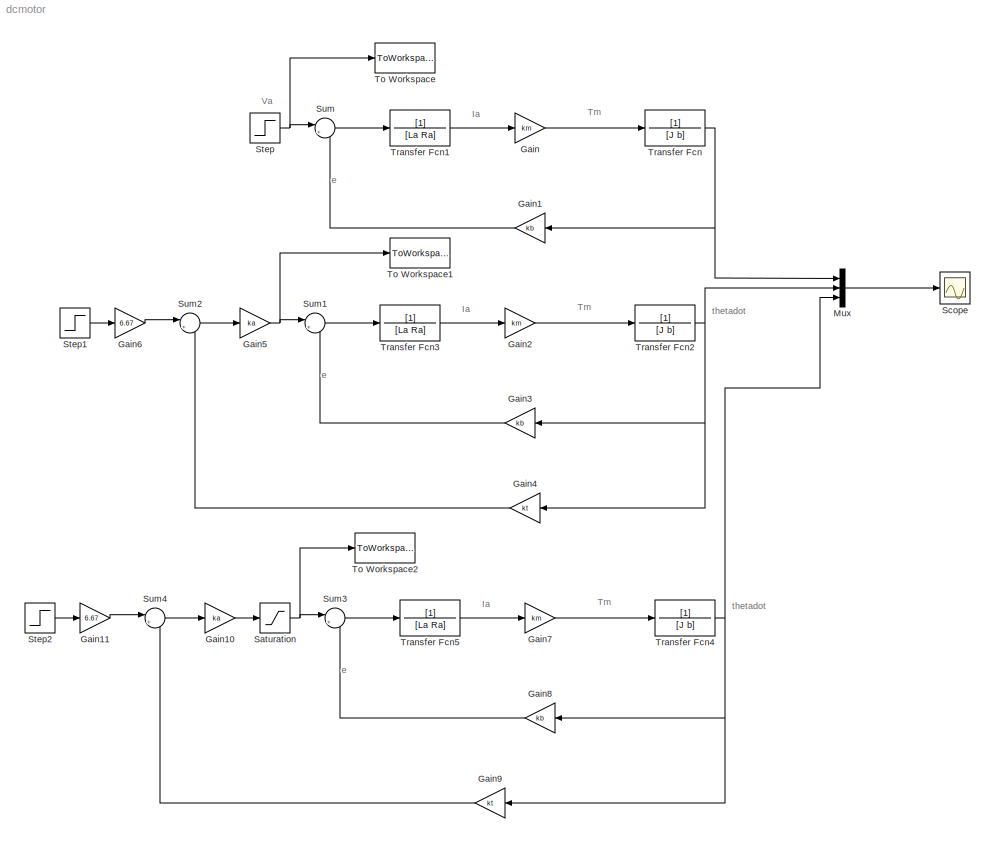
MODEL dcmotor
KIND model
BLOCK [Gain] Gain
  Gain = km
  OutDataTypeMode = Inherit via internal rule
  ParameterDataTypeMode = Inherit via internal rule
  SaturateOnIntegerOverflow = off
BLOCK [Gain] Gain1
  Gain = kb
  OutDataTypeMode = Inherit via internal rule
  ParameterDataTypeMode = Inherit via internal rule
  SaturateOnIntegerOverflow = off
BLOCK [Gain] Gain10
  Gain = ka
  OutDataTypeMode = Inherit via internal rule
  ParameterDataTypeMode = Inherit via internal rule
  SaturateOnIntegerOverflow = off
BLOCK [Gain] Gain11
  Gain = 6.67
  OutDataTypeMode = Inherit via internal rule
  ParameterDataTypeMode = Inherit via internal rule
  SaturateOnIntegerOverflow = off
BLOCK [Gain] Gain2
  Gain = km
  OutDataTypeMode = Inherit via internal rule
  ParameterDataTypeMode = Inherit via internal rule
  SaturateOnIntegerOverflow = off
BLOCK [Gain] Gain3
  Gain = kb
  OutDataTypeMode = Inherit via internal rule
  ParameterDataTypeMode = Inherit via internal rule
  SaturateOnIntegerOverflow = off
BLOCK [Gain] Gain4
  Gain = kt
  OutDataTypeMode = Inherit via internal rule
  ParameterDataTypeMode = Inherit via internal rule
  SaturateOnIntegerOverflow = off
BLOCK [Gain] Gain5
  Gain = ka
  OutDataTypeMode = Inherit via internal rule
  ParameterDataTypeMode = Inherit via internal rule
  SaturateOnIntegerOverflow = off
BLOCK [Gain] Gain6
  Gain = 6.67
  OutDataTypeMode = Inherit via internal rule
  ParameterDataTypeMode = Inherit via internal rule
  SaturateOnIntegerOverflow = off
BLOCK [Gain] Gain7
  Gain = km
  OutDataTypeMode = Inherit via internal rule
  ParameterDataTypeMode = Inherit via internal rule
  SaturateOnIntegerOverflow = off
BLOCK [Gain] Gain8
  Gain = kb
  OutDataTypeMode = Inherit via internal rule
  ParameterDataTypeMode = Inherit via internal rule
  SaturateOnIntegerOverflow = off
BLOCK [Gain] Gain9
  Gain = kt
  OutDataTypeMode = Inherit via internal rule
  ParameterDataTypeMode = Inherit via internal rule
  SaturateOnIntegerOverflow = off
BLOCK [Mux] Mux
  DisplayOption = bar
  Inputs = 3
  Ports = [3, 1]
BLOCK [Saturate] Saturation
  LowerLimit = -10
  UpperLimit = 10
BLOCK [Scope] Scope
  DataFormat = StructureWithTime
  NumInputPorts = 1
  Ports = [1]
BLOCK [Step] Step
  SampleTime = 0
BLOCK [Step] Step1
  SampleTime = 0
BLOCK [Step] Step2
  SampleTime = 0
BLOCK [Sum] Sum
  IconShape = round
  InputSameDT = off
  Inputs = |+-
  OutDataTypeMode = Inherit via internal rule
  Ports = [2, 1]
  SaturateOnIntegerOverflow = off
BLOCK [Sum] Sum1
  IconShape = round
  InputSameDT = off
  Inputs = |+-
  OutDataTypeMode = Inherit via internal rule
  Ports = [2, 1]
  SaturateOnIntegerOverflow = off
BLOCK [Sum] Sum2
  IconShape = round
  InputSameDT = off
  Inputs = |+-
  OutDataTypeMode = Inherit via internal rule
  Ports = [2, 1]
  SaturateOnIntegerOverflow = off
BLOCK [Sum] Sum3
  IconShape = round
  InputSameDT = off
  Inputs = |+-
  OutDataTypeMode = Inherit via internal rule
  Ports = [2, 1]
  SaturateOnIntegerOverflow = off
BLOCK [Sum] Sum4
  IconShape = round
  InputSameDT = off
  Inputs = |+-
  OutDataTypeMode = Inherit via internal rule
  Ports = [2, 1]
  SaturateOnIntegerOverflow = off
BLOCK [ToWorkspace] To Workspace
  MaxDataPoints = inf
  SampleTime = -1
  SaveFormat = Array
  VariableName = ol_input
BLOCK [ToWorkspace] To Workspace1
  MaxDataPoints = inf
  SampleTime = -1
  SaveFormat = Array
  VariableName = cl_input
BLOCK [ToWorkspace] To Workspace2
  MaxDataPoints = inf
  SampleTime = -1
  SaveFormat = Array
  VariableName = sat_input
BLOCK [TransferFcn] Transfer Fcn
  Denominator = [J b]
BLOCK [TransferFcn] Transfer Fcn1
  Denominator = [La Ra]
BLOCK [TransferFcn] Transfer Fcn2
  Denominator = [J b]
BLOCK [TransferFcn] Transfer Fcn3
  Denominator = [La Ra]
BLOCK [TransferFcn] Transfer Fcn4
  Denominator = [J b]
BLOCK [TransferFcn] Transfer Fcn5
  Denominator = [La Ra]
ANNOTATION (root): Ia
ANNOTATION (root): Tm
ANNOTATION (root): Va
ANNOTATION (root): e
ANNOTATION (root): thetadot
LINE Gain10:1 -> Saturation:1
LINE Gain11:1 -> Sum4:1
LINE Gain1:1 -> Sum:2
LINE Gain2:1 -> Transfer Fcn2:1
LINE Gain3:1 -> Sum1:2
LINE Gain4:1 -> Sum2:2
NET Gain5:1 -> Sum1:1, To Workspace1:1
LINE Gain6:1 -> Sum2:1
LINE Gain7:1 -> Transfer Fcn4:1
LINE Gain8:1 -> Sum3:2
LINE Gain9:1 -> Sum4:2
LINE Gain:1 -> Transfer Fcn:1
LINE Mux:1 -> Scope:1
NET Saturation:1 -> Sum3:1, To Workspace2:1
LINE Step1:1 -> Gain6:1
LINE Step2:1 -> Gain11:1
NET Step:1 -> Sum:1, To Workspace:1
LINE Sum1:1 -> Transfer Fcn3:1
LINE Sum2:1 -> Gain5:1
LINE Sum3:1 -> Transfer Fcn5:1
LINE Sum4:1 -> Gain10:1
LINE Sum:1 -> Transfer Fcn1:1
LINE Transfer Fcn1:1 -> Gain:1
NET Transfer Fcn2:1 -> Gain3:1, Gain4:1, Mux:2
LINE Transfer Fcn3:1 -> Gain2:1
NET Transfer Fcn4:1 -> Gain8:1, Gain9:1, Mux:3
LINE Transfer Fcn5:1 -> Gain7:1
NET Transfer Fcn:1 -> Gain1:1, Mux:1
note: NET lines group one-source signal fan-out (src -> all destinations, sorted); 1:1 wires keep LINE
